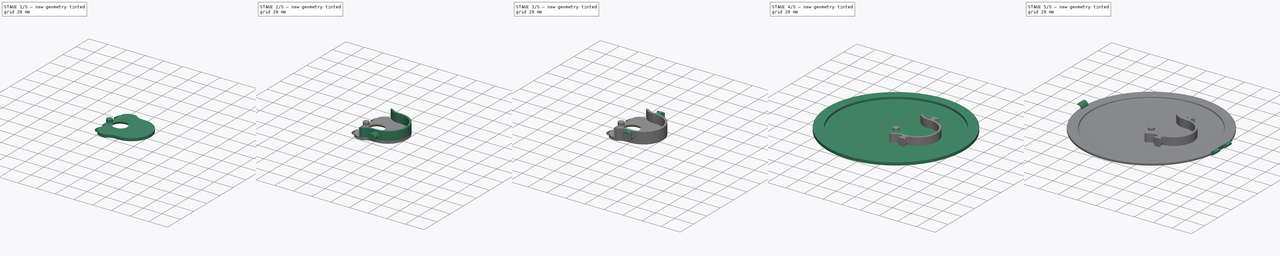
[diagram: build sequence overview — one tinted view per stage of 5, left to right]
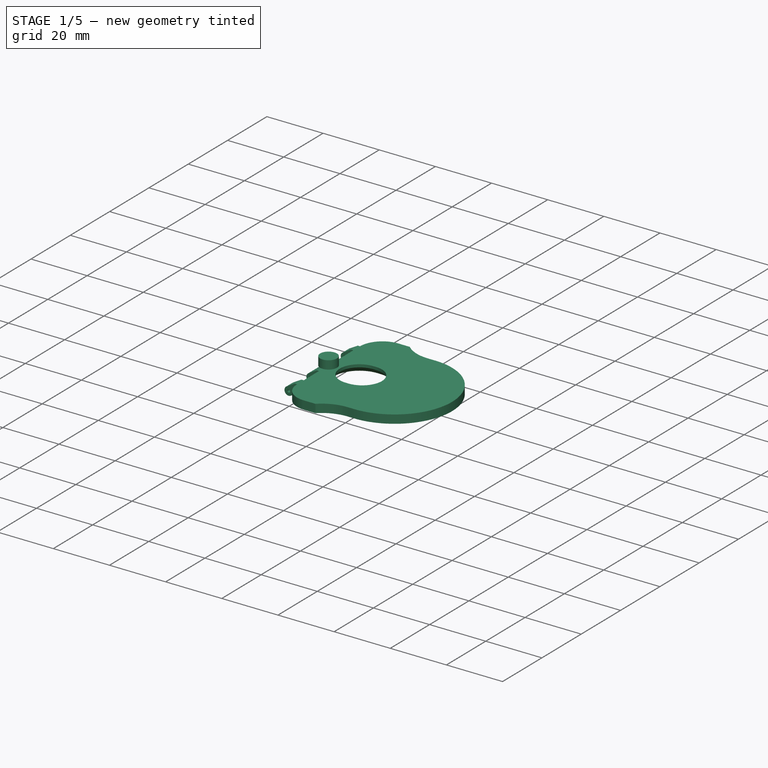
[diagram: stage 1 of 5 — iso view after this stage's code; geometry added in this stage tinted green]
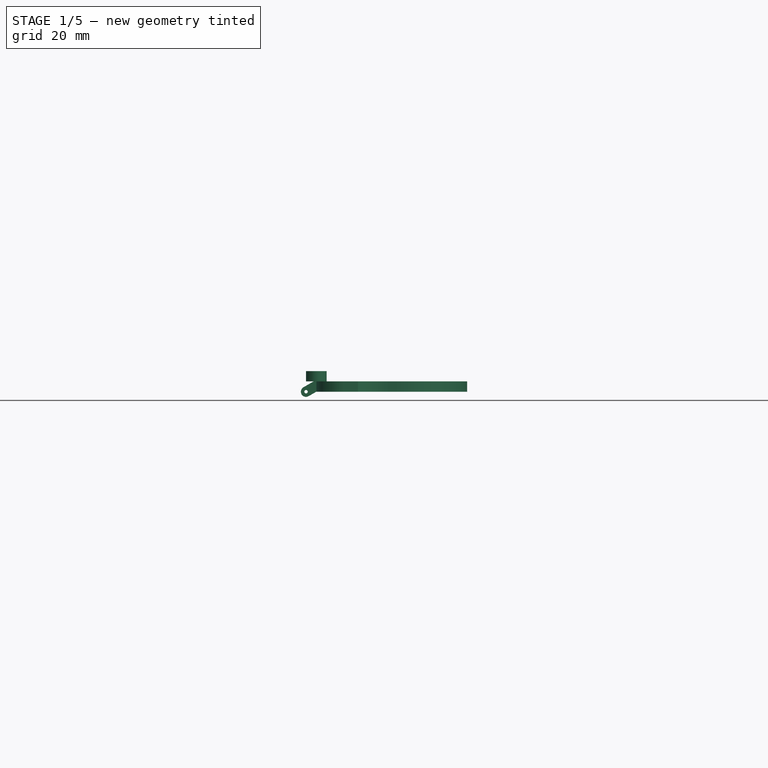
[diagram: stage 1 of 5 — front view after this stage's code; geometry added in this stage tinted green]
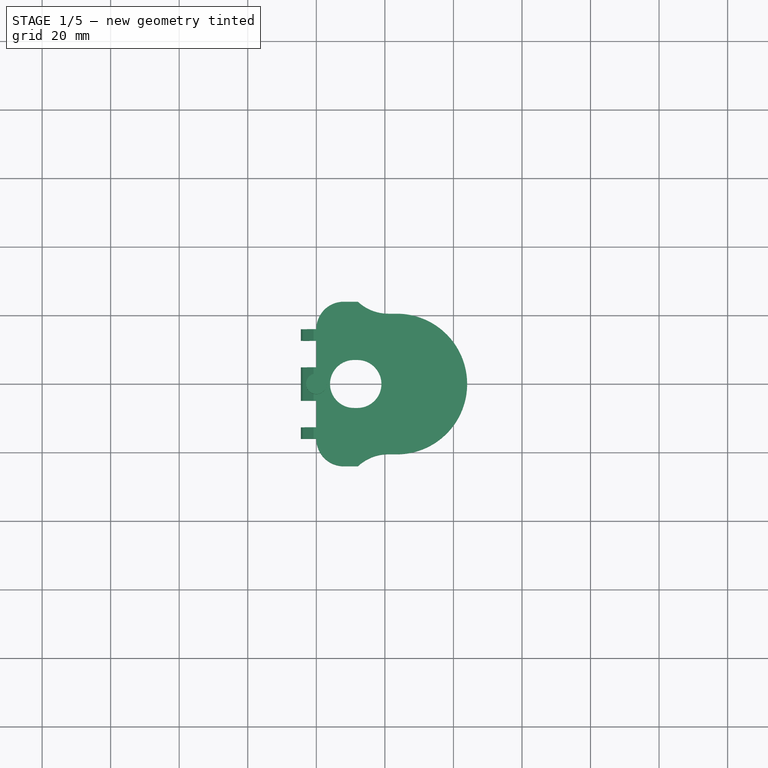
[diagram: stage 1 of 5 — top view after this stage's code; geometry added in this stage tinted green]
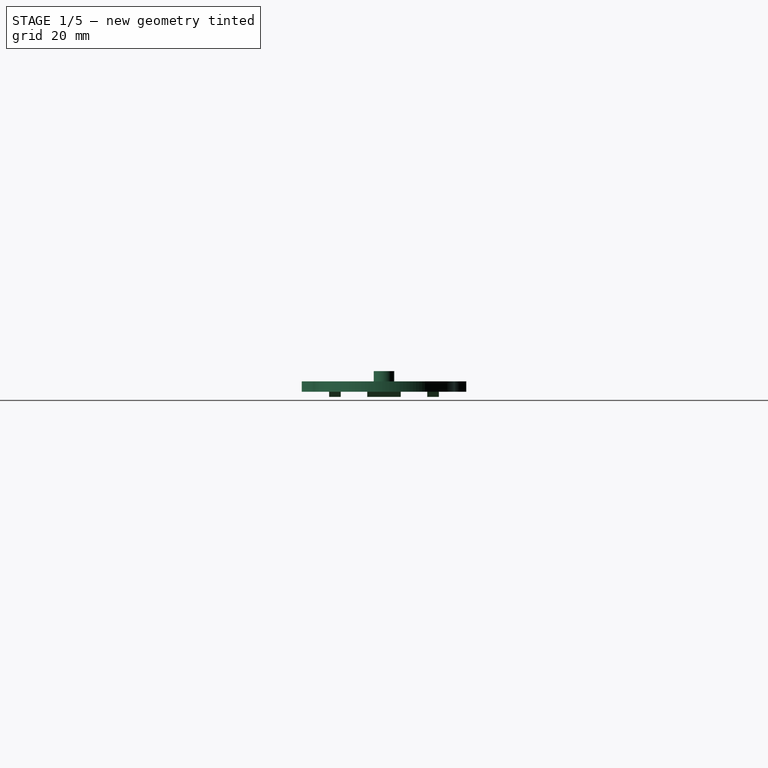
[diagram: stage 1 of 5 — right view after this stage's code; geometry added in this stage tinted green]
FCSTD DOCUMENT  (FreeCAD 0.20R27319 (Git))
Label: LightCover
License: All rights reserved
LicenseURL: http://en.wikipedia.org/wiki/All_rights_reserved
objects: Sketcher::SketchObject×12, PartDesign::Pad×9, PartDesign::Fillet×4, PartDesign::Plane×3, PartDesign::Pocket×3, PartDesign::Body×3, PartDesign::Mirrored×3, Part::FeaturePython×3, Spreadsheet::Sheet×1, PartDesign::Line×1, PartDesign::Chamfer×1, PartDesign::Revolution×1, PartDesign::MultiTransform×1, App::DocumentObjectGroup×1
note: 62 computed .brp shape members not serialized (recipe doc carries the construction recipe); baked Part::Feature solids carry a one-line shape summary decoded from their .brp

FEATURE [Spreadsheet::Sheet] Spreadsheet
  cells = A1=Width; B1(Width)=37; C1=WIdth of hinge mount near switch; A2=Length; B2(Length)=42; C2=Length from edge of hinge mount to edge of hinge; A3=Wall Thickness; B3(WallThickness)=2; C3=Thickness of shoulder on hinge mount; A4=Minor Length; B4(MinorLength)=19; A5=Shoulder Radius; B5(ShoulderRadius)=15; C5=Radius of curve that joins rim to switch area; A6=Plate Thickness; B6(PlateThickness)=3; C6=Thickness of hinge mounting and rim of cover; A7=Shoulder Width; B7(ShoulderWidth)=48; C7=Width of hing mounting at widest (over rim); A8=Hinge Width; B8(HingeWidth)=25; C8=Inner width of hinge - Outer width of two tabs; A9=Hinge Outer WIdth; B9(HingeOuterWIdth)=32; C9=Outer width of hinge - Width of entire hinge; A10=Cover Width; B10(CoverWidth)=146; C10=Width of main cover; A11=Shoulder Height; B11(ShoulderHeight)=9; C11=Height of shoulder rim on edge of hinge mounting; A12=Hinge Inner Width; B12(HingeInnerWidth)=10; C12=Hinge inner width - centre tab width; A13=Hinge Clearance; B13(HingeClearance)=0.25; C13=Gap between each hinge piece; A14=Boss Location; B14(BossLocation)=24; C14=Location of boss in X direction; A15=Cover Thickness; B15(CoverThickness)=0.8; C15=Thicknes of middle of cover; A16=Boss Z; B16(BossZ)=4; C16=Z Offset of boss; A17=Rim Width; B17(RimWidth)=10; C17=Width of rim on cover
FEATURE [Sketcher::SketchObject] Sketch002
  FullyConstrained = true
  MapMode = 5
  Placement = pos=(0,0,0) rot=(1,0,0;1.5708rad)
  Support = -> [XZ_Plane001]
  expr: Constraints[12] = Spreadsheet.PlateThickness
  expr: Constraints[5] = Spreadsheet.PlateThickness / 2
  expr: Constraints[6] = Spreadsheet.PlateThickness
  sketch-geometry (6):
    g0: LineSegment StartX=-0.803848 StartY=0 StartZ=0 EndX=-3.75 EndY=-1.70096 EndZ=0
    g1: ArcOfCircle CenterX=-3 CenterY=-3 CenterZ=0 NormalX=0 NormalY=0 NormalZ=1 AngleXU=0 Radius=1.5 StartAngle=2.0944 EndAngle=5.23599
    g2: LineSegment StartX=-2.25 StartY=-4.29904 StartZ=0 EndX=0 EndY=-3 EndZ=0
    g3: Circle CenterX=-3 CenterY=-3 CenterZ=0 NormalX=0 NormalY=0 NormalZ=1 AngleXU=0 Radius=0.5
    g4: LineSegment StartX=-0.803848 StartY=0 StartZ=0 EndX=0 EndY=0 EndZ=0
    g5: LineSegment StartX=0 StartY=0 StartZ=0 EndX=0 EndY=-3 EndZ=0
  constraints (15):
    c: Tangent(g0,g1) = -1.5708
    c: Coincident(g3,g1)
    c: Diameter(g3) = 1
    c: Tangent(g1,g2) = -1.5708
    c: Parallel(g0,g2)
    c: Radius(g1) = 1.5
    c: DistanceX(g1,g2) = 3
    c: Coincident(g4,g0)
    c: Horizontal(g4)
    c: Coincident(g5,g4)
    c: Vertical(g5)
    c: Coincident(g4,g-1)
    c: DistanceY(g5,g5) = 3
    c: Coincident(g2,g5)
    c: Horizontal(g1,g2)
FEATURE [Sketcher::SketchObject] Sketch006
  FullyConstrained = true
  MapMode = 5
  Support = -> [XY_Plane001]
  expr: Constraints[22] = Spreadsheet.Width
  expr: Constraints[23] = Spreadsheet.Width + 2 * Spreadsheet.WallThickness
  expr: Constraints[26] = Spreadsheet.Length
  expr: Constraints[27] = Spreadsheet.MinorLength + Spreadsheet.WallThickness
  expr: Constraints[28] = Spreadsheet.ShoulderRadius
  expr: Constraints[31] = Spreadsheet.ShoulderWidth
  sketch-geometry (13):
    g0: ArcOfCircle CenterX=23.5 CenterY=0 CenterZ=0 NormalX=0 NormalY=0 NormalZ=1 AngleXU=0 Radius=18.5 StartAngle=4.71239 EndAngle=7.85398
    g1: ArcOfCircle CenterX=21 CenterY=33.5 CenterZ=0 NormalX=0 NormalY=0 NormalZ=1 AngleXU=0 Radius=15 StartAngle=3.82745 EndAngle=4.71239
    g2: ArcOfCircle CenterX=21 CenterY=-33.5 CenterZ=0 NormalX=0 NormalY=0 NormalZ=1 AngleXU=0 Radius=15 StartAngle=1.5708 EndAngle=2.45574
    g3: ArcOfCircle CenterX=21 CenterY=33.5 CenterZ=0 NormalX=0 NormalY=0 NormalZ=1 AngleXU=0 Radius=13 StartAngle=3.96104 EndAngle=4.71239
    g4: ArcOfCircle CenterX=21 CenterY=-33.5 CenterZ=0 NormalX=0 NormalY=0 NormalZ=1 AngleXU=0 Radius=13 StartAngle=1.5708 EndAngle=2.32214
    g5: ArcOfCircle CenterX=23.5 CenterY=0 CenterZ=0 NormalX=0 NormalY=0 NormalZ=1 AngleXU=0 Radius=20.5 StartAngle=4.71239 EndAngle=7.85398
    g6: LineSegment StartX=21 StartY=18.5 StartZ=0 EndX=23.5 EndY=18.5 EndZ=0
    g7: LineSegment StartX=21 StartY=-18.5 StartZ=0 EndX=23.5 EndY=-18.5 EndZ=0
    g8: LineSegment StartX=9.39181 StartY=24 StartZ=0 EndX=12.1259 EndY=24 EndZ=0
    g9: LineSegment StartX=9.39181 StartY=-24 StartZ=0 EndX=12.1259 EndY=-24 EndZ=0
    g10: LineSegment StartX=21 StartY=-20.5 StartZ=0 EndX=23.5 EndY=-20.5 EndZ=0
    g11: LineSegment StartX=21 StartY=20.5 StartZ=0 EndX=23.5 EndY=20.5 EndZ=0
    g12: GeomPoint X=42 Y=0 Z=0
  constraints (32):
    c: Coincident(g3,g1)
    c: Coincident(g4,g2)
    c: Coincident(g5,g0)
    c: Horizontal(g6)
    c: Horizontal(g7)
    c: Coincident(g8,g1)
    c: Coincident(g8,g3)
    c: Coincident(g9,g2)
    c: Coincident(g9,g4)
    c: Horizontal(g9)
    c: Horizontal(g10)
    c: Horizontal(g11)
    c: Tangent(g11,g5) = 1.5708
    c: Tangent(g10,g5) = -1.5708
    c: Tangent(g7,g0) = -1.5708
    c: Tangent(g6,g0) = 1.5708
    c: Tangent(g10,g4) = 1.5708
    c: Tangent(g11,g3) = -1.5708
    c: Tangent(g6,g1) = -1.5708
    c: Tangent(g7,g2) = 1.5708
    c: PointOnObject(g0,g-1)
    c: Symmetric(g3,g4,g-1)
    c: DistanceY(g0,g0) = 37
    c: DistanceY(g5,g5) = 41
    c: PointOnObject(g12,g0)
    c: PointOnObject(g12,g-1)
    c: DistanceX(g-1,g12) = 42
    c: DistanceX(g-1,g2) = 21
    c: Radius(g1) = 15
    c: Vertical(g4,g3)
    c: Horizontal(g8)
    c: DistanceY(g2,g1) = 48
FEATURE [Sketcher::SketchObject] Sketch007
  FullyConstrained = true
  MapMode = 5
  Support = -> [XY_Plane001]
  expr: Constraints[22] = Spreadsheet.WallThickness + Spreadsheet.Length
  expr: Constraints[28] = Spreadsheet.ShoulderRadius - Spreadsheet.WallThickness
  expr: Constraints[29] = Spreadsheet.MinorLength + Spreadsheet.WallThickness
  expr: Constraints[38] = Spreadsheet.ShoulderWidth
  expr: Constraints[9] = Spreadsheet.Width + 2 * Spreadsheet.WallThickness
  sketch-geometry (17):
    g0: LineSegment StartX=0 StartY=-16 StartZ=0 EndX=0 EndY=16 EndZ=0
    g1: LineSegment StartX=8 StartY=24 StartZ=0 EndX=12.1259 EndY=24 EndZ=0
    g2: LineSegment StartX=21 StartY=20.5 StartZ=0 EndX=23.5 EndY=20.5 EndZ=0
    g3: LineSegment StartX=23.5 StartY=-20.5 StartZ=0 EndX=21 EndY=-20.5 EndZ=0
    g4: LineSegment StartX=12.1259 StartY=-24 StartZ=0 EndX=8 EndY=-24 EndZ=0
    g5: ArcOfCircle CenterX=23.5 CenterY=-1e-15 CenterZ=0 NormalX=0 NormalY=0 NormalZ=1 AngleXU=0 Radius=20.5 StartAngle=4.71239 EndAngle=7.85398
    g6: GeomPoint X=11.5 Y=0 Z=0
    g7: ArcOfCircle CenterX=11 CenterY=0 CenterZ=0 NormalX=0 NormalY=0 NormalZ=1 AngleXU=0 Radius=7 StartAngle=1.5708 EndAngle=4.71239
    g8: ArcOfCircle CenterX=12 CenterY=0 CenterZ=0 NormalX=0 NormalY=0 NormalZ=1 AngleXU=0 Radius=7 StartAngle=4.71239 EndAngle=7.85398
    g9: LineSegment StartX=11 StartY=7 StartZ=0 EndX=12 EndY=7 EndZ=0
    g10: LineSegment StartX=11 StartY=-7 StartZ=0 EndX=12 EndY=-7 EndZ=0
    g11: GeomPoint X=44 Y=0 Z=0
    g12: ArcOfCircle CenterX=21 CenterY=33.5 CenterZ=0 NormalX=0 NormalY=0 NormalZ=1 AngleXU=0 Radius=13 StartAngle=3.96104 EndAngle=4.71239
    g13: ArcOfCircle CenterX=21 CenterY=-33.5 CenterZ=0 NormalX=0 NormalY=0 NormalZ=1 AngleXU=0 Radius=13 StartAngle=1.5708 EndAngle=2.32214
    g14: ArcOfCircle CenterX=8 CenterY=16 CenterZ=0 NormalX=0 NormalY=0 NormalZ=1 AngleXU=0 Radius=8 StartAngle=1.5708 EndAngle=3.14159
    g15: ArcOfCircle CenterX=8 CenterY=-16 CenterZ=0 NormalX=0 NormalY=0 NormalZ=1 AngleXU=0 Radius=8 StartAngle=3.14159 EndAngle=4.71239
    g16: GeomPoint X=4 Y=0 Z=0
  constraints (43):
    c: Horizontal(g1)
    c: Horizontal(g2)
    c: Horizontal(g3)
    c: Vertical(g3,g2)
    c: Horizontal(g4)
    c: Symmetric(g1,g4,g-1)
    c: Coincident(g5,g3)
    c: Symmetric(g2,g3,g-1)
    c: Tangent(g5,g2) = 1.5708
    c: DistanceY(g3,g2) = 41
    c: PointOnObject(g6,g-1)
    c: PointOnObject(g7,g-1)
    c: Horizontal(g9)
    c: Tangent(g9,g8) = 1.5708
    c: Tangent(g10,g8) = -1.5708
    c: Tangent(g9,g7) = 1.5708
    c: Tangent(g10,g7) = -1.5708
    c: Symmetric(g7,g8,g6)
    c: DistanceX(g9,g9) = 1
    c: Radius(g8) = 7
    c: PointOnObject(g11,g-1)
    c: PointOnObject(g11,g5)
    c: DistanceX(g-1,g11) = 44
    c: Coincident(g12,g1)
    c: Coincident(g13,g3)
    c: Coincident(g13,g4)
    c: Equal(g12,g13)
    c: Tangent(g12,g2) = -1.5708
    c: Radius(g12) = 13
    c: DistanceX(g-1,g13) = 21
    c: Tangent(g0,g14) = 1.5708
    c: Tangent(g1,g14) = 1.5708
    c: Tangent(g0,g15) = 1.5708
    c: Tangent(g4,g15) = 1.5708
    c: Equal(g14,g15)
    c: Radius(g14) = 8
    c: Vertical(g0)
    c: PointOnObject(g-1,g0)
    c: DistanceY(g4,g1) = 48
    c: DistanceX(g6,g11) = 32.5
    c: PointOnObject(g16,g7)
    c: PointOnObject(g16,g-1)
    c: DistanceX(g-1,g16) = 4
FEATURE [PartDesign::Pad] Pad004  label="Mounting"
  Direction = (0,0,1)
  Length = 3
  Length2 = 10
  Profile = -> Sketch007
  ReferenceAxis = -> Sketch007 [N_Axis]
  Reversed = true
  Type = 0
  expr: Length = Spreadsheet.PlateThickness
FEATURE [Sketcher::SketchObject] Sketch010
  FullyConstrained = false
  MapMode = 5
  Support = -> [XY_Plane001]
  expr: Constraints[17] = Spreadsheet.HingeInnerWidth - Spreadsheet.HingeClearance
  expr: Constraints[19] = Spreadsheet.HingeWidth + Spreadsheet.HingeClearance
  sketch-geometry (8):
    g0: LineSegment StartX=-13.702 StartY=12.625 StartZ=0 EndX=0 EndY=12.625 EndZ=0
    g1: LineSegment StartX=0 StartY=12.625 StartZ=0 EndX=0 EndY=4.875 EndZ=0
    g2: LineSegment StartX=0 StartY=4.875 StartZ=0 EndX=-4.94797 EndY=4.875 EndZ=0
    g3: LineSegment StartX=-4.94797 StartY=4.875 StartZ=0 EndX=-4.94797 EndY=-4.875 EndZ=0
    g4: LineSegment StartX=-4.94797 StartY=-4.875 StartZ=0 EndX=0 EndY=-4.875 EndZ=0
    g5: LineSegment StartX=0 StartY=-4.875 StartZ=0 EndX=0 EndY=-12.625 EndZ=0
    g6: LineSegment StartX=0 StartY=-12.625 StartZ=0 EndX=-13.702 EndY=-12.625 EndZ=0
    g7: LineSegment StartX=-13.702 StartY=-12.625 StartZ=0 EndX=-13.702 EndY=12.625 EndZ=0
  constraints (20):
    c: Coincident(g0,g1)
    c: Vertical(g1)
    c: Coincident(g1,g2)
    c: Horizontal(g2)
    c: Coincident(g2,g3)
    c: Vertical(g3)
    c: Coincident(g3,g4)
    c: Coincident(g4,g5)
    c: Coincident(g5,g6)
    c: Coincident(g6,g7)
    c: Coincident(g0,g7)
    c: Horizontal(g0)
    c: Horizontal(g6)
    c: Symmetric(g0,g6,g-1)
    c: Symmetric(g1,g4,g-1)
    c: Vertical(g5)
    c: Horizontal(g4)
    c: DistanceY(g3,g3) = 9.75
    c: PointOnObject(g0,g-2)
    c: DistanceY(g7,g7) = 25.25
FEATURE [PartDesign::Plane] DatumPlane  label="DatumPlane - Boss"
  Length = 60
  MapMode = 2
  Placement = pos=(0,0,4) rot=(0,0,1;0rad)
  ResizeMode = 0
  Width = 60
  expr: .Placement.Base.z = Spreadsheet.BossZ
FEATURE [Sketcher::SketchObject] Sketch011
  FullyConstrained = false
  MapMode = 5
  Placement = pos=(0,0,4) rot=(0,0,1;0rad)
  Support = -> [DatumPlane]
  expr: Constraints[4] = Spreadsheet.BossLocation
  sketch-geometry (6):
    g0: LineSegment StartX=24 StartY=-19 StartZ=0 EndX=28 EndY=-19 EndZ=0
    g1: ArcOfCircle CenterX=27.636 CenterY=-22.6876 CenterZ=0 NormalX=0 NormalY=0 NormalZ=1 AngleXU=0 Radius=1.75 StartAngle=2.10052 EndAngle=4.54056
    g2: LineSegment StartX=27.2 StartY=-26 StartZ=0 EndX=24 EndY=-26 EndZ=0
    g3: ArcOfCircle CenterX=25.4768 CenterY=-19 CenterZ=0 NormalX=0 NormalY=0 NormalZ=1 AngleXU=0 Radius=2.5232 StartAngle=5.24211 EndAngle=6.28319
    g4: ArcOfCircle CenterX=27.2 CenterY=-25.2 CenterZ=0 NormalX=0 NormalY=0 NormalZ=1 AngleXU=0 Radius=0.8 StartAngle=4.71239 EndAngle=7.68215
    g5: LineSegment StartX=24 StartY=-19 StartZ=0 EndX=24 EndY=-26 EndZ=0
  constraints (17):
    c: Horizontal(g0)
    c: Horizontal(g2)
    c: DistanceX(g0,g0) = 4
    c: DistanceY(g2,g0) = 7
    c: DistanceX(g-1,g0) = 24
    c: DistanceY(g0,g-1) = 19
    c: Coincident(g3,g0)
    c: Tangent(g3,g1) = 1.5708
    c: Perpendicular(g3,g0)
    c: Tangent(g2,g4) = 1.5708
    c: Tangent(g4,g1) = 1.5708
    c: Radius(g1) = 1.75
    c: Coincident(g5,g0)
    c: Coincident(g5,g2)
    c: Vertical(g5)
    c: Radius(g4) = 0.8
    c: DistanceX(g2,g2) = 3.2
FEATURE [PartDesign::Line] DatumLine  label="DatumLine - Boss"
  AttacherType = Attacher::AttachEngineLine
  Length = 20
  MapMode = 17
  Placement = pos=(24,0,4) rot=(1,0,0;1.5708rad)
  ResizeMode = 0
  expr: .Placement.Base.x = Spreadsheet.BossLocation
  expr: .Placement.Base.z = Spreadsheet.BossZ
FEATURE [PartDesign::Chamfer] Chamfer
  Angle = 45
  Base = -> Pad004 [Edge40]
  BaseFeature = -> Pad004
  ChamferType = 0
  FlipDirection = false
  Size = 2
  Size2 = 1
  SupportTransform = false
FEATURE [PartDesign::Pad] Pad006  label="Hinge002"
  BaseFeature = -> Chamfer
  Direction = (0,-1,-2e-16)
  Length = 32
  Length2 = 10
  Midplane = true
  Profile = -> Sketch002
  ReferenceAxis = -> Sketch002 [N_Axis]
  Type = 0
  expr: Length = Spreadsheet.HingeOuterWIdth
FEATURE [PartDesign::Pocket] Pocket002  label="Hinge Cutout"
  BaseFeature = -> Pad006
  Direction = (0,0,-1)
  Length = 5
  Length2 = 5
  Midplane = true
  Profile = -> Sketch010
  ReferenceAxis = -> Sketch010 [N_Axis]
  Type = 1
FEATURE [App::DocumentObjectGroup] GrExplode_Slice  label="Hinge Exploded"
  Group = -> [Slice_child0,Slice_child1]
FEATURE [Sketcher::SketchObject] Sketch018
  FullyConstrained = true
  MapMode = 5
  Support = -> [XY_Plane002]
  expr: Constraints[1] = Spreadsheet.RimWidth - 4
  sketch-geometry (1):
    g0: Circle CenterX=0 CenterY=0 CenterZ=0 NormalX=0 NormalY=0 NormalZ=1 AngleXU=0 Radius=3
  constraints (2):
    c: Coincident(g0,g-1)
    c: Diameter(g0) = 6
FEATURE [PartDesign::Pad] Pad010
  Direction = (0,0,1)
  Length = 3
  Length2 = 10
  Profile = -> Sketch018
  ReferenceAxis = -> Sketch018 [N_Axis]
  Type = 0
FEATURE [PartDesign::Body] Body002  label="Spacer"
  Group = -> [Sketch018,Pad010]
  Origin = -> Origin002
  Tip = -> Pad010
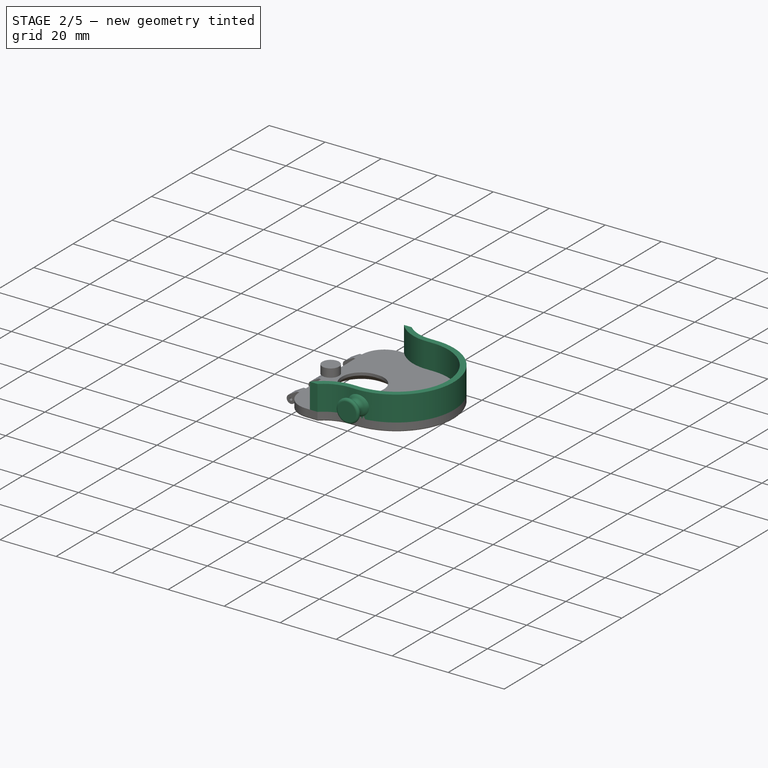
[diagram: stage 2 of 5 — iso view after this stage's code; geometry added in this stage tinted green]
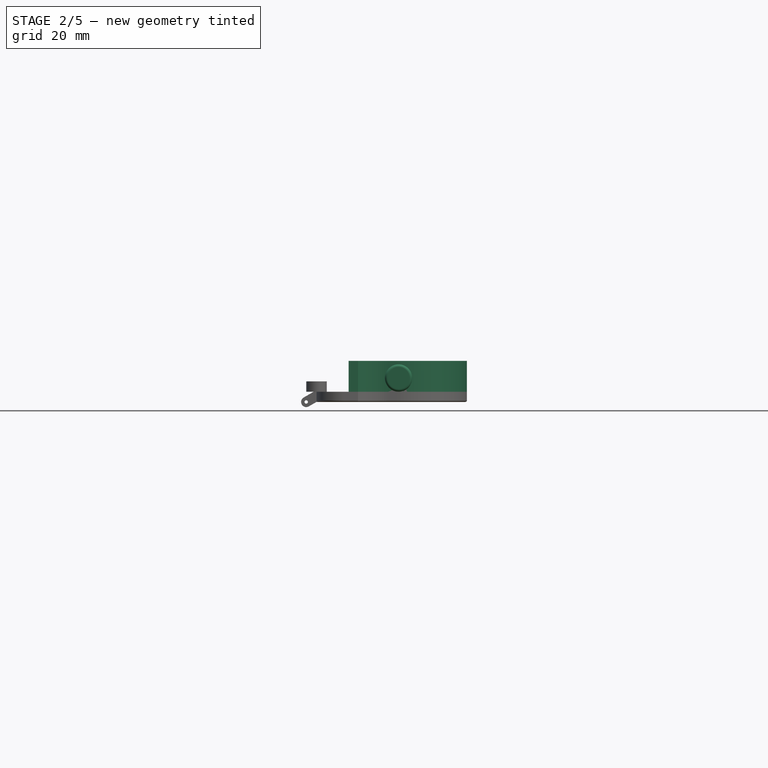
[diagram: stage 2 of 5 — front view after this stage's code; geometry added in this stage tinted green]
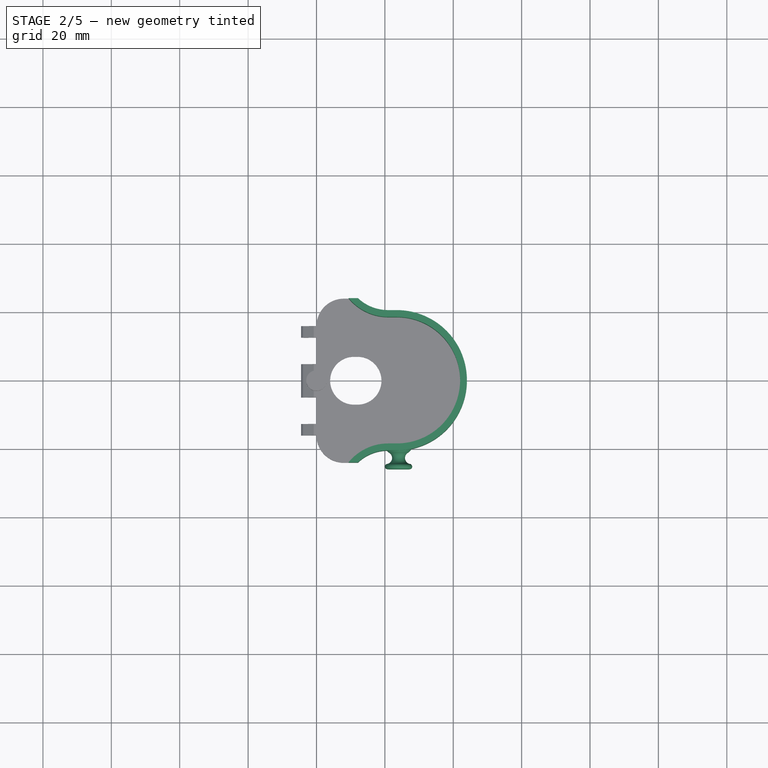
[diagram: stage 2 of 5 — top view after this stage's code; geometry added in this stage tinted green]
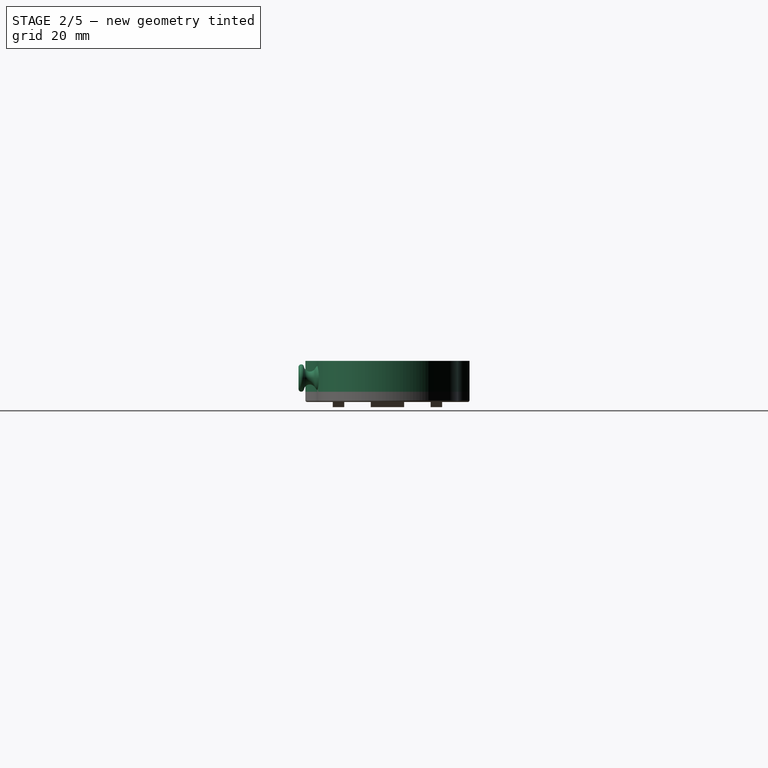
[diagram: stage 2 of 5 — right view after this stage's code; geometry added in this stage tinted green]
FEATURE [PartDesign::Fillet] Fillet003  label="Fillet-Main edges"
  Base = -> Pocket002 [Edge43,Edge46,Edge40,Edge35,Edge37]
  BaseFeature = -> Pocket002
  Radius = 0.5
  SupportTransform = false
FEATURE [PartDesign::Pad] Pad005  label="Wall"
  BaseFeature = -> Fillet003
  Direction = (0,0,1)
  Length = 9
  Length2 = 10
  Profile = -> Sketch006
  ReferenceAxis = -> Sketch006 [N_Axis]
  Type = 0
  expr: Length = Spreadsheet.ShoulderHeight
FEATURE [Sketcher::SketchObject] Sketch017
  FullyConstrained = true
  MapMode = 5
  Support = -> [XY_Plane001]
  expr: Constraints[2] = Spreadsheet.Length + Spreadsheet.WallThickness / 2
  expr: Constraints[6] = Spreadsheet.Width / 2 + Spreadsheet.WallThickness / 2
  expr: Constraints[7] = Spreadsheet.MinorLength
  sketch-geometry (3):
    g0: Circle CenterX=43 CenterY=0 CenterZ=0 NormalX=0 NormalY=0 NormalZ=1 AngleXU=0 Radius=0.5
    g1: Circle CenterX=24 CenterY=19.5 CenterZ=0 NormalX=0 NormalY=0 NormalZ=1 AngleXU=0 Radius=0.5
    g2: Circle CenterX=24 CenterY=-19.5 CenterZ=0 NormalX=0 NormalY=0 NormalZ=1 AngleXU=0 Radius=0.5
  constraints (8):
    c: Radius(g0) = 0.5
    c: PointOnObject(g0,g-1)
    c: DistanceX(g-1,g0) = 43
    c: Equal(g1,g2)
    c: Equal(g2,g0)
    c: Symmetric(g1,g2,g-1)
    c: DistanceY(g-1,g1) = 19.5
    c: DistanceX(g1,g0) = 19
FEATURE [PartDesign::Pocket] Pocket
  BaseFeature = -> Pad005
  Direction = (0,0,-1)
  Length = 1.5
  Length2 = 5
  Midplane = true
  Profile = -> Sketch017
  ReferenceAxis = -> Sketch017 [N_Axis]
  Type = 0
  expr: Length = Spreadsheet.PlateThickness / 2
FEATURE [PartDesign::Revolution] Revolution  label="Revolution - Boss"
  Angle = 360
  Axis = (0,-1,2e-16)
  Base = (24,0,4)
  BaseFeature = -> Pocket
  Profile = -> Sketch011
  ReferenceAxis = -> DatumLine
  Reversed = true
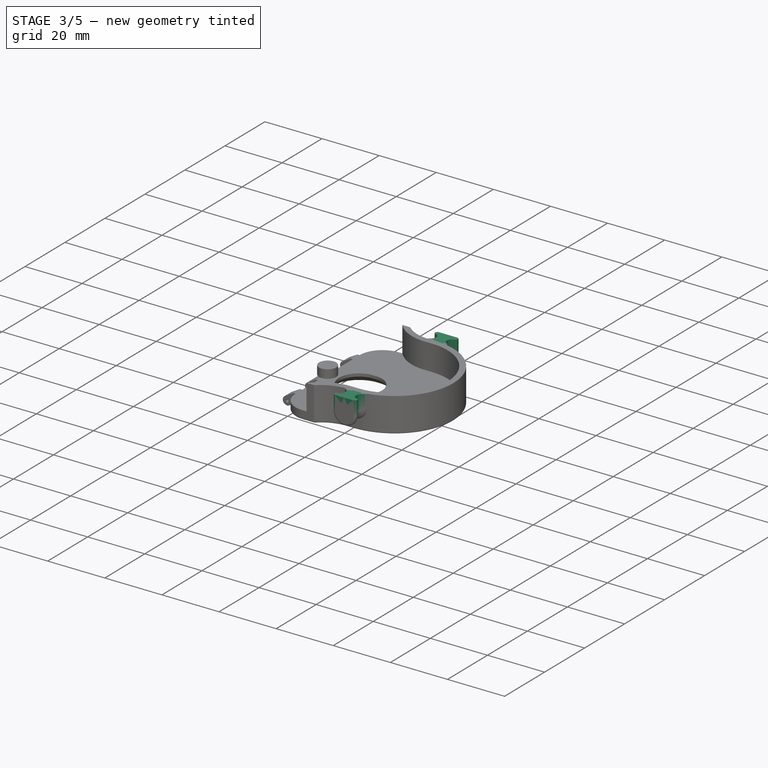
[diagram: stage 3 of 5 — iso view after this stage's code; geometry added in this stage tinted green]
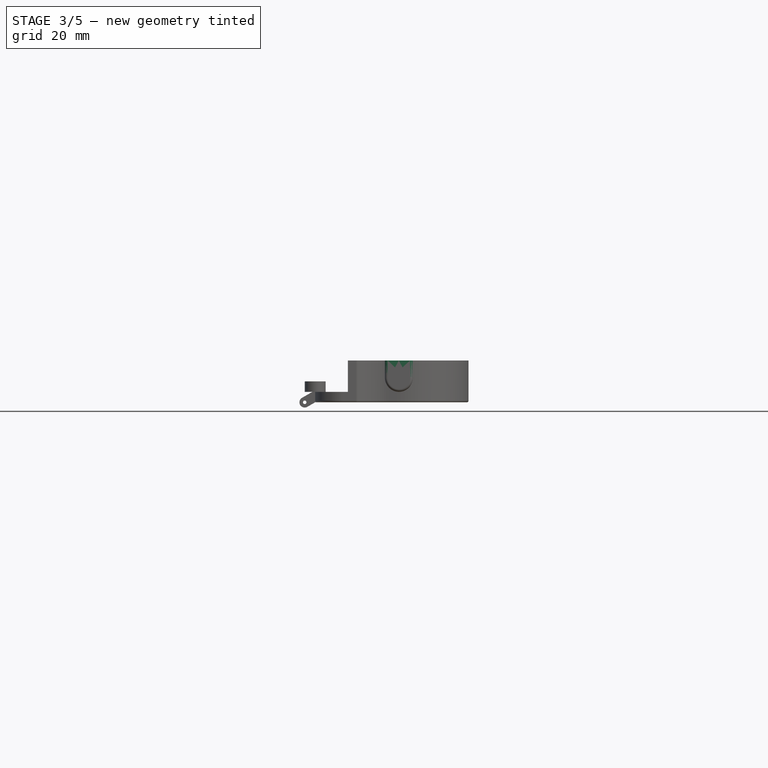
[diagram: stage 3 of 5 — front view after this stage's code; geometry added in this stage tinted green]
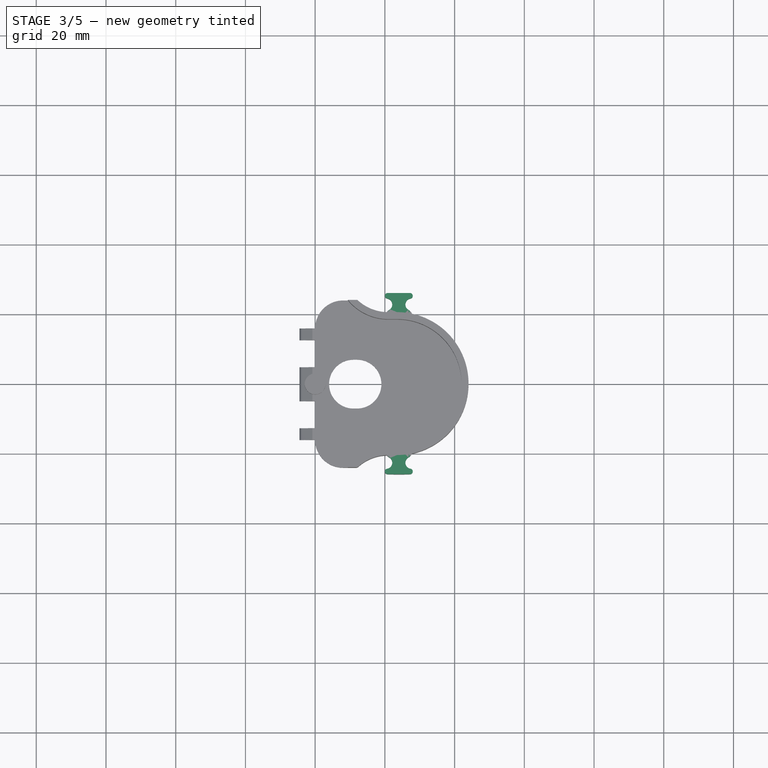
[diagram: stage 3 of 5 — top view after this stage's code; geometry added in this stage tinted green]
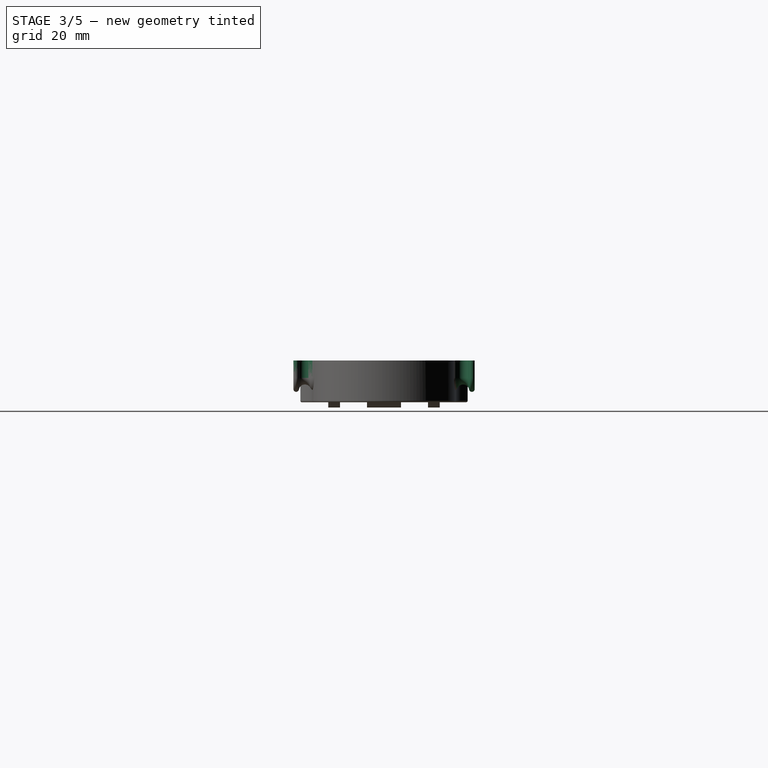
[diagram: stage 3 of 5 — right view after this stage's code; geometry added in this stage tinted green]
FEATURE [PartDesign::Pad] Pad009  label="Pad - Boss half support"
  BaseFeature = -> Revolution
  Direction = (0,0,1)
  Length = 5
  Length2 = 0
  Profile = -> Sketch011
  ReferenceAxis = -> Sketch011 [N_Axis]
  Type = 0
  expr: Length = Spreadsheet.ShoulderHeight - Spreadsheet.BossZ
FEATURE [PartDesign::Body] Body  label="Cover"
  Group = -> [Sketch,Pad,Sketch001,Sketch004,Sketch005,Pad003,Fillet009,Pad001,Sketch003,Pocket001,Pad008,Fillet]
  Origin = -> Origin
  Tip = -> Fillet
FEATURE [PartDesign::Plane] DatumPlane004  label="DatumPlane - Boss2"
  Length = 60
  MapMode = 2
  Placement = pos=(24,0,0) rot=(0.57735,0.57735,0.57735;2.0944rad)
  ResizeMode = 0
  Width = 60
  expr: .Placement.Base.x = Spreadsheet.BossLocation
FEATURE [PartDesign::Mirrored] Mirrored
  MirrorPlane = -> DatumPlane004
  Overlap = 0
FEATURE [PartDesign::Mirrored] Mirrored001
  MirrorPlane = -> XZ_Plane001
  Overlap = 0
FEATURE [PartDesign::MultiTransform] MultiTransform
  BaseFeature = -> Pad009
  Originals = -> [Pad009]
  Overlap = 0
  Transformations = -> [Mirrored,Mirrored001]
FEATURE [PartDesign::Mirrored] Mirrored002
  BaseFeature = -> MultiTransform
  MirrorPlane = -> XZ_Plane001
  Originals = -> [Revolution]
  Overlap = 0
FEATURE [PartDesign::Fillet] Fillet010
  Base = -> Mirrored002 [Edge144]
  BaseFeature = -> Mirrored002
  Radius = 1
  SupportTransform = false
FEATURE [PartDesign::Body] Body001  label="Hinge"
  Group = -> [Sketch007,Pad004,Sketch017,Chamfer,Pad006,Pocket002,Fillet003,Sketch006,Pad005,Pocket,Sketch002,DatumLine,DatumPlane,DatumPlane004,Revolution,Pad009,Sketch011,Sketch010,DatumPlane003,MultiTransform,Mirrored,Mirrored001,Mirrored002,Fillet010]
  Origin = -> Origin001
  Tip = -> Fillet010
FEATURE [Part::FeaturePython] Slice  # WARN: FeaturePython — macro-defined, semantics opaque (R4)
  Base = -> Fillet010
  Mode = 1
  Tolerance = 0
  Tools = -> [DatumPlane003]
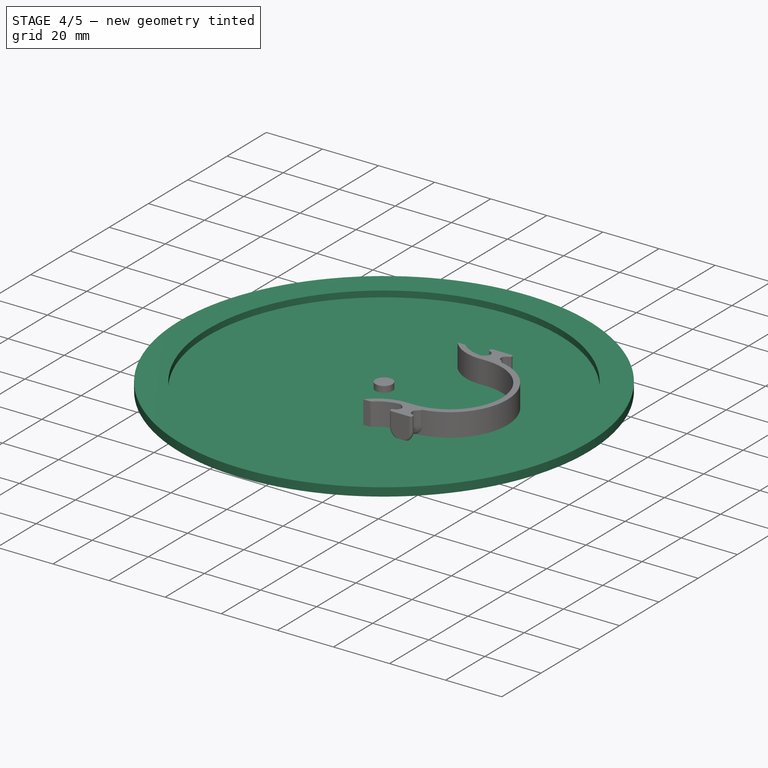
[diagram: stage 4 of 5 — iso view after this stage's code; geometry added in this stage tinted green]
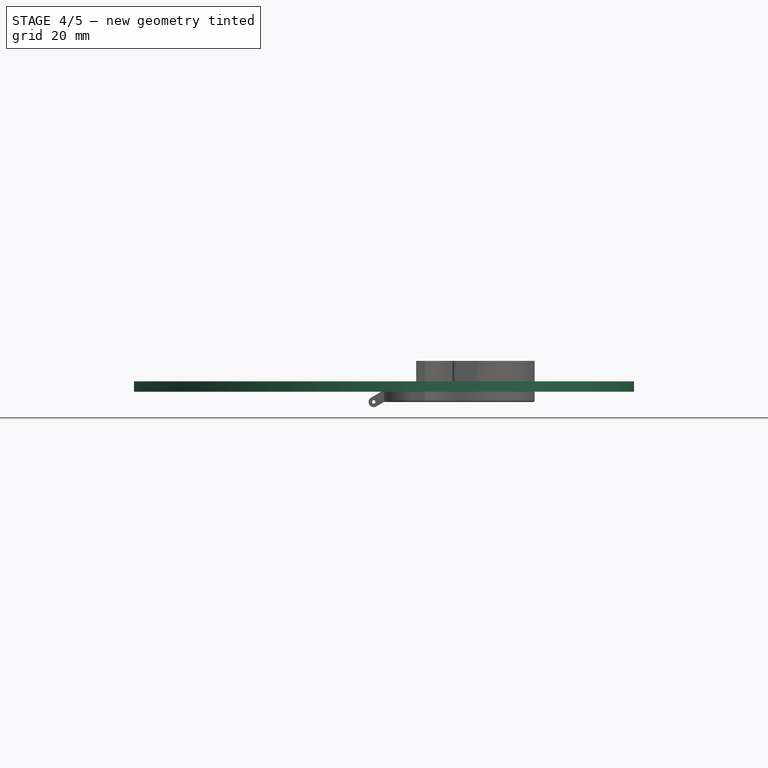
[diagram: stage 4 of 5 — front view after this stage's code; geometry added in this stage tinted green]
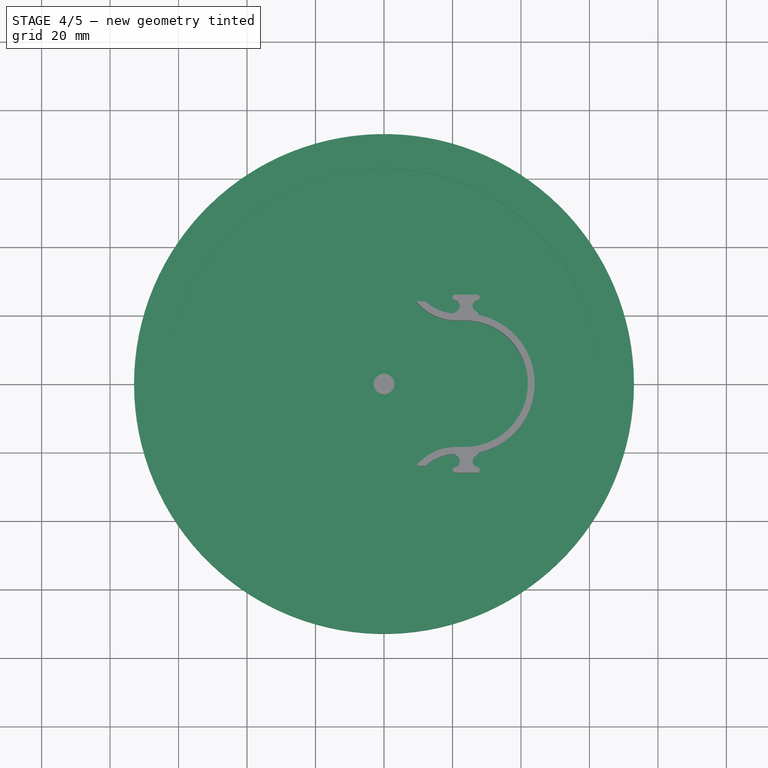
[diagram: stage 4 of 5 — top view after this stage's code; geometry added in this stage tinted green]
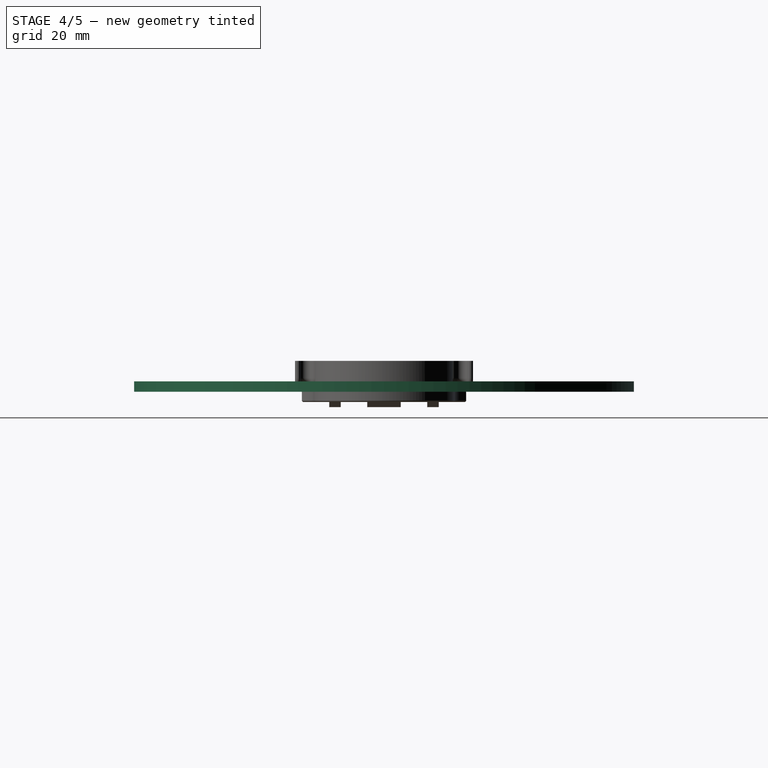
[diagram: stage 4 of 5 — right view after this stage's code; geometry added in this stage tinted green]
FEATURE [Sketcher::SketchObject] Sketch004
  FullyConstrained = true
  MapMode = 5
  Placement = pos=(0,0,0) rot=(1,0,0;1.5708rad)
  Support = -> [XZ_Plane]
  expr: Constraints[10] = Spreadsheet.PlateThickness
  expr: Constraints[7] = Spreadsheet.CoverWidth / 2 - 2
  sketch-geometry (4):
    g0: ArcOfCircle CenterX=-74 CenterY=3 CenterZ=0 NormalX=0 NormalY=0 NormalZ=1 AngleXU=0 Radius=4.5 StartAngle=3e-16 EndAngle=1.5708
    g1: ArcOfCircle CenterX=-74 CenterY=3 CenterZ=0 NormalX=0 NormalY=0 NormalZ=1 AngleXU=0 Radius=3 StartAngle=4e-16 EndAngle=1.5708
    g2: LineSegment StartX=-71 StartY=3 StartZ=0 EndX=-69.5 EndY=3 EndZ=0
    g3: ArcOfCircle CenterX=-74 CenterY=6.75 CenterZ=0 NormalX=0 NormalY=0 NormalZ=1 AngleXU=0 Radius=0.75 StartAngle=1.5708 EndAngle=4.71239
  constraints (12):
    c: Tangent(g0,g3) = -1.5708
    c: Tangent(g1,g3) = 1.5708
    c: Coincident(g0,g1)
    c: Coincident(g1,g2)
    c: Horizontal(g2,g0)
    c: Radius(g1) = 3
    c: Coincident(g0,g2)
    c: DistanceX(g1,g-1) = 71
    c: DistanceX(g2,g2) = 1.5
    c: Perpendicular(g1,g2)
    c: DistanceY(g-1,g1) = 3
    c: Vertical(g3,g0)
FEATURE [Sketcher::SketchObject] Sketch001
  FullyConstrained = true
  MapMode = 5
  Placement = pos=(0,0,0) rot=(1,0,0;1.5708rad)
  Support = -> [XZ_Plane]
  expr: Constraints[0] = Spreadsheet.PlateThickness / 2
  expr: Constraints[11] = Spreadsheet.PlateThickness - 0.5
  expr: Constraints[3] = Spreadsheet.CoverWidth / 2 + Spreadsheet.PlateThickness / 2
  expr: Constraints[5] = Spreadsheet.PlateThickness
  sketch-geometry (6):
    g0: ArcOfCircle CenterX=74.5 CenterY=3 CenterZ=0 NormalX=0 NormalY=0 NormalZ=1 AngleXU=0 Radius=1.5 StartAngle=5.32325 EndAngle=8.28578
    g1: LineSegment StartX=72.8307 StartY=0 StartZ=0 EndX=75.3604 EndY=1.77127 EndZ=0
    g2: Circle CenterX=74.5 CenterY=3 CenterZ=0 NormalX=0 NormalY=0 NormalZ=1 AngleXU=0 Radius=0.5
    g3: LineSegment StartX=69.8307 StartY=2.5 StartZ=0 EndX=73.8722 EndY=4.36232 EndZ=0
    g4: LineSegment StartX=72.8307 StartY=0 StartZ=0 EndX=69.8307 EndY=0 EndZ=0
    g5: LineSegment StartX=69.8307 StartY=0 StartZ=0 EndX=69.8307 EndY=2.5 EndZ=0
  constraints (16):
    c: Radius(g0) = 1.5
    c: Coincident(g2,g0)
    c: Diameter(g2) = 1
    c: DistanceX(g-1,g0) = 74.5
    c: Tangent(g0,g1) = -1.5708
    c: DistanceY(g-1,g0) = 3
    c: DistanceY(g-1,g1) = 0
    c: Coincident(g4,g5)
    c: Coincident(g5,g3)
    c: Horizontal(g4)
    c: Vertical(g5)
    c: DistanceY(g5,g5) = 2.5
    c: Coincident(g4,g1)
    c: Angle(g1,g-1) = 2.53073
    c: DistanceX(g4,g4) = 3
    c: Tangent(g3,g0) = 1.5708
FEATURE [Sketcher::SketchObject] Sketch
  FullyConstrained = true
  MapMode = 5
  Support = -> [XY_Plane]
  expr: Constraints[1] = Spreadsheet.CoverWidth - 4
  sketch-geometry (1):
    g0: Circle CenterX=0 CenterY=0 CenterZ=0 NormalX=0 NormalY=0 NormalZ=1 AngleXU=0 Radius=71
  constraints (2):
    c: Coincident(g0,g-1)
    c: Diameter(g0) = 142
FEATURE [PartDesign::Pad] Pad  label="ThinPlate"
  Direction = (0,0,1)
  Length = 0.8
  Length2 = 10
  Profile = -> Sketch
  ReferenceAxis = -> Sketch [N_Axis]
  Type = 0
  expr: Length = Spreadsheet.CoverThickness
FEATURE [Sketcher::SketchObject] Sketch003
  ExternalGeometry = -> [Pad]
  FullyConstrained = false
  MapMode = 5
  Support = -> [XY_Plane]
  expr: Constraints[10] = Spreadsheet.HingeInnerWidth + Spreadsheet.HingeClearance
  expr: Constraints[11] = Spreadsheet.CoverWidth / 2 - 1
  sketch-geometry (5):
    g0: LineSegment StartX=87.7007 StartY=-5.125 StartZ=0 EndX=87.7007 EndY=5.125 EndZ=0
    g1: LineSegment StartX=87.7007 StartY=5.125 StartZ=0 EndX=72 EndY=5.125 EndZ=0
    g2: LineSegment StartX=72 StartY=5.125 StartZ=0 EndX=72 EndY=-5.125 EndZ=0
    g3: LineSegment StartX=72 StartY=-5.125 StartZ=0 EndX=87.7007 EndY=-5.125 EndZ=0
    g4: GeomPoint X=79.8504 Y=0 Z=0
  constraints (12):
    c: Coincident(g0,g1)
    c: Coincident(g1,g2)
    c: Coincident(g2,g3)
    c: Coincident(g3,g0)
    c: Horizontal(g1)
    c: Horizontal(g3)
    c: Vertical(g0)
    c: Vertical(g2)
    c: Symmetric(g1,g0,g4)
    c: PointOnObject(g4,g-1)
    c: DistanceY(g0,g0) = 10.25
    c: DistanceX(g-1,g2) = 72
FEATURE [Sketcher::SketchObject] Sketch005
  FullyConstrained = true
  MapMode = 5
  Support = -> [XY_Plane]
  expr: Constraints[2] = Spreadsheet.CoverWidth
  expr: Constraints[3] = Spreadsheet.CoverWidth - 2 * Spreadsheet.RimWidth
  sketch-geometry (2):
    g0: Circle CenterX=0 CenterY=0 CenterZ=0 NormalX=0 NormalY=0 NormalZ=1 AngleXU=0 Radius=63
    g1: Circle CenterX=0 CenterY=0 CenterZ=0 NormalX=0 NormalY=0 NormalZ=1 AngleXU=0 Radius=73
  constraints (4):
    c: Coincident(g0,g-1)
    c: Coincident(g1,g0)
    c: Diameter(g1) = 146
    c: Diameter(g0) = 126
FEATURE [PartDesign::Pad] Pad003  label="EdgeRing"
  BaseFeature = -> Pad
  Direction = (0,0,1)
  Length = 3
  Length2 = 10
  Profile = -> Sketch005
  ReferenceAxis = -> Sketch005 [N_Axis]
  Type = 0
  expr: Length = Spreadsheet.PlateThickness
FEATURE [Part::FeaturePython] Slice_child0  label="Hinge-Plate"  # WARN: FeaturePython — macro-defined, semantics opaque (R4)
  Base = -> Slice
  FilterType = 1
  Invert = false
  OverrideMaxVal = 0
  WindowFrom = 80
  WindowTo = 100
  items = 0
FEATURE [Part::FeaturePython] Slice_child1  label="Hinge-Wall"  # WARN: FeaturePython — macro-defined, semantics opaque (R4)
  Base = -> Slice
  FilterType = 1
  Invert = false
  OverrideMaxVal = 0
  WindowFrom = 80
  WindowTo = 100
  items = 1
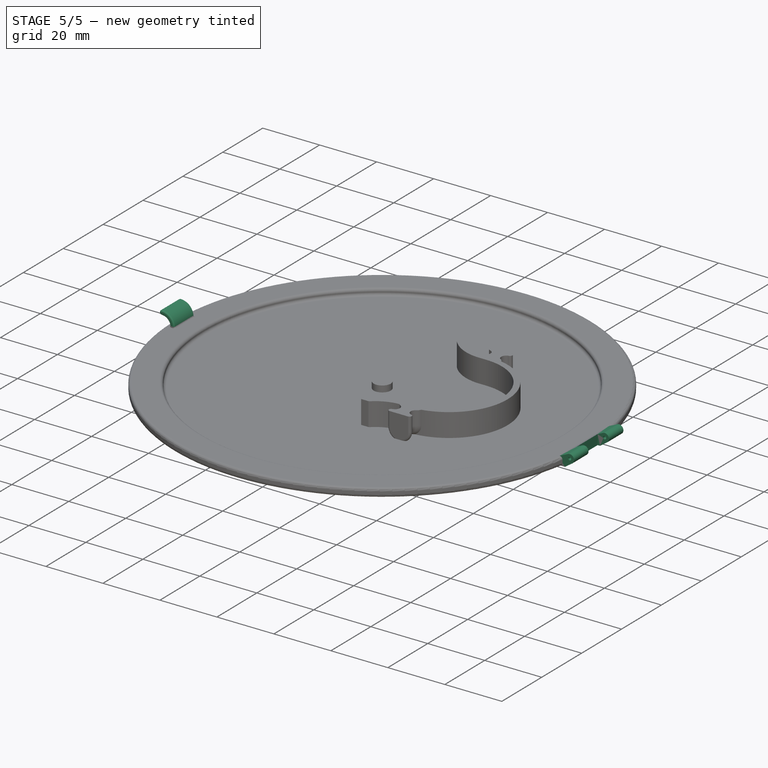
[diagram: stage 5 of 5 — iso view after this stage's code; geometry added in this stage tinted green]
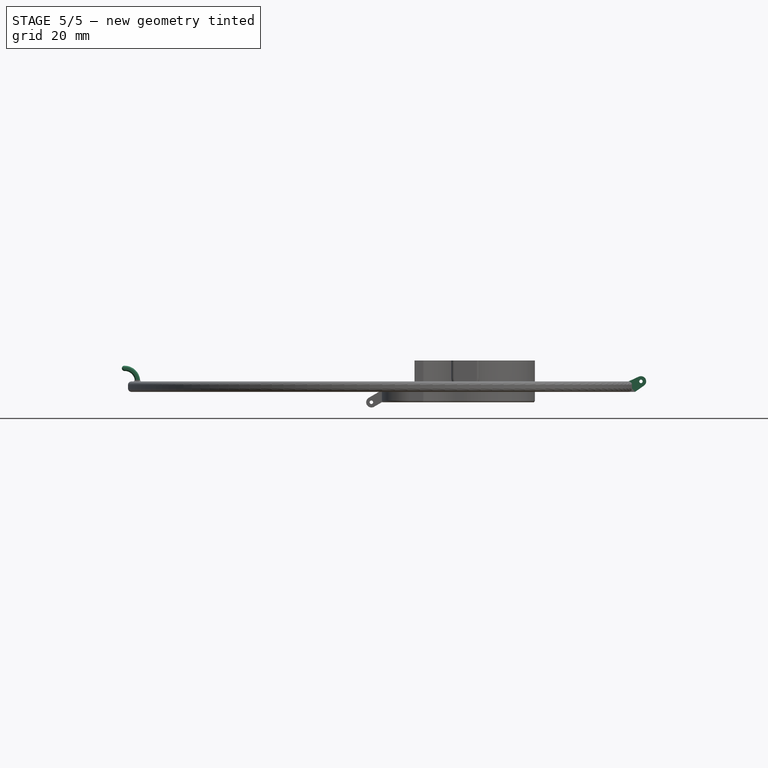
[diagram: stage 5 of 5 — front view after this stage's code; geometry added in this stage tinted green]
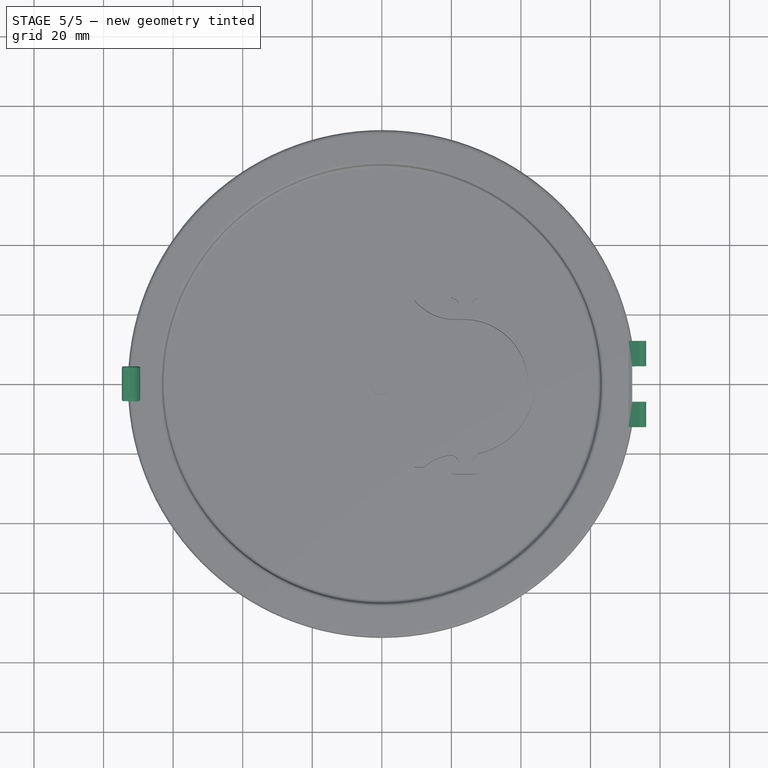
[diagram: stage 5 of 5 — top view after this stage's code; geometry added in this stage tinted green]
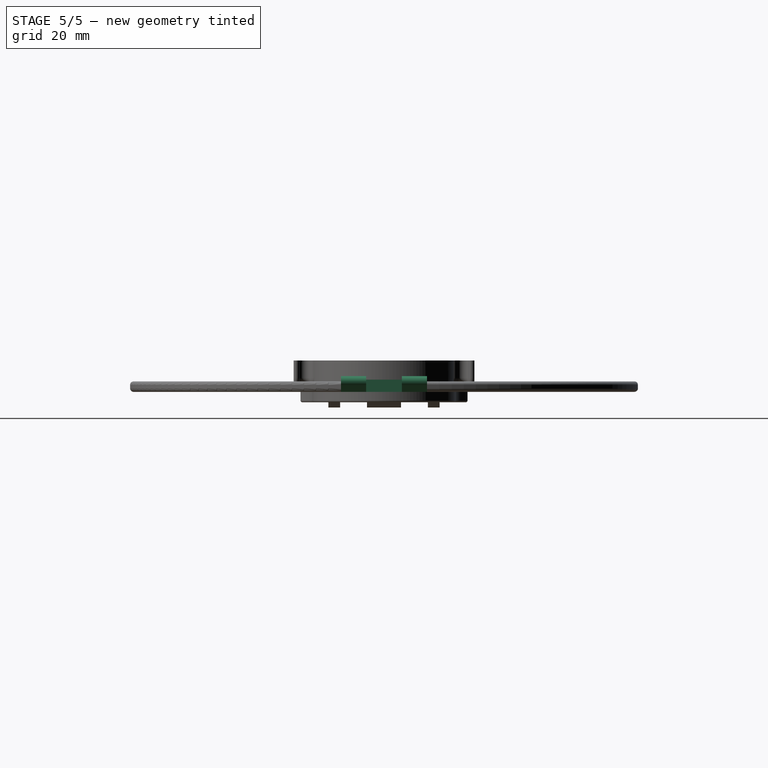
[diagram: stage 5 of 5 — right view after this stage's code; geometry added in this stage tinted green]
FEATURE [PartDesign::Plane] DatumPlane003
  Length = 60
  MapMode = 2
  ResizeMode = 0
  Support = -> [Revolution]
  Width = 60
FEATURE [PartDesign::Fillet] Fillet009
  Base = -> Pad003 [Face6,Face4]
  BaseFeature = -> Pad003
  Radius = 1
  SupportTransform = false
FEATURE [PartDesign::Pad] Pad001  label="Hinge001"
  BaseFeature = -> Fillet009
  Direction = (0,-1,-2e-16)
  Length = 24.75
  Length2 = 10
  Midplane = true
  Profile = -> Sketch001
  ReferenceAxis = -> Sketch001 [N_Axis]
  Type = 0
  expr: Length = Spreadsheet.HingeWidth - Spreadsheet.HingeClearance
FEATURE [PartDesign::Pocket] Pocket001  label="Hinge cut out"
  BaseFeature = -> Pad001
  Direction = (0,0,-1)
  Length = 5
  Length2 = 5
  Profile = -> Sketch003
  ReferenceAxis = -> Sketch003 [N_Axis]
  Reversed = true
  Type = 1
FEATURE [PartDesign::Pad] Pad008
  BaseFeature = -> Pocket001
  Direction = (0,-1,-2e-16)
  Length = 10
  Length2 = 10
  Midplane = true
  Profile = -> Sketch004
  ReferenceAxis = -> Sketch004 [N_Axis]
  Type = 0
FEATURE [PartDesign::Fillet] Fillet
  Base = -> Pad008 [Face26,Face24]
  BaseFeature = -> Pad008
  Radius = 0.5
  SupportTransform = false
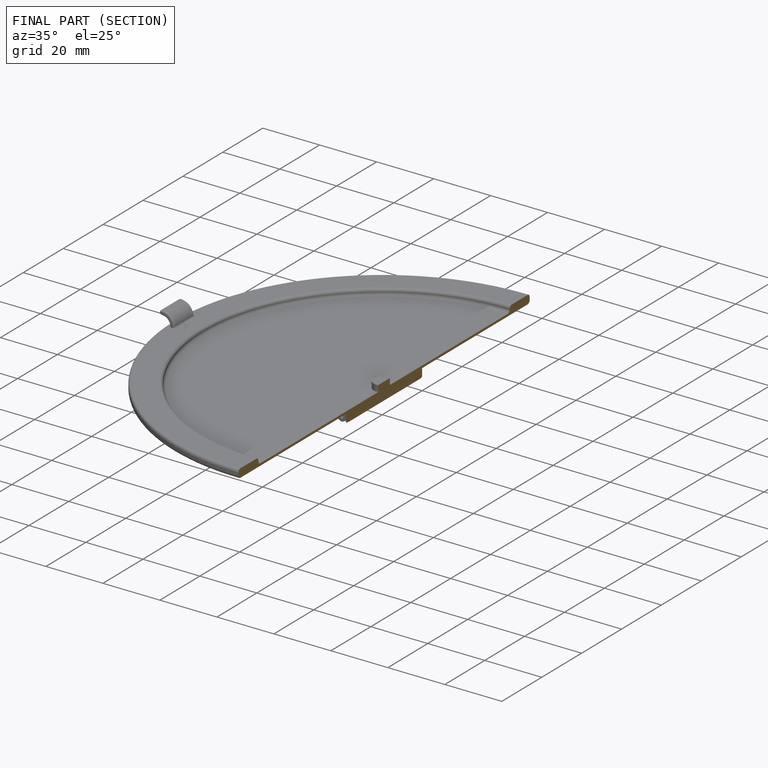
[diagram: finished part — half-section view (interior)]
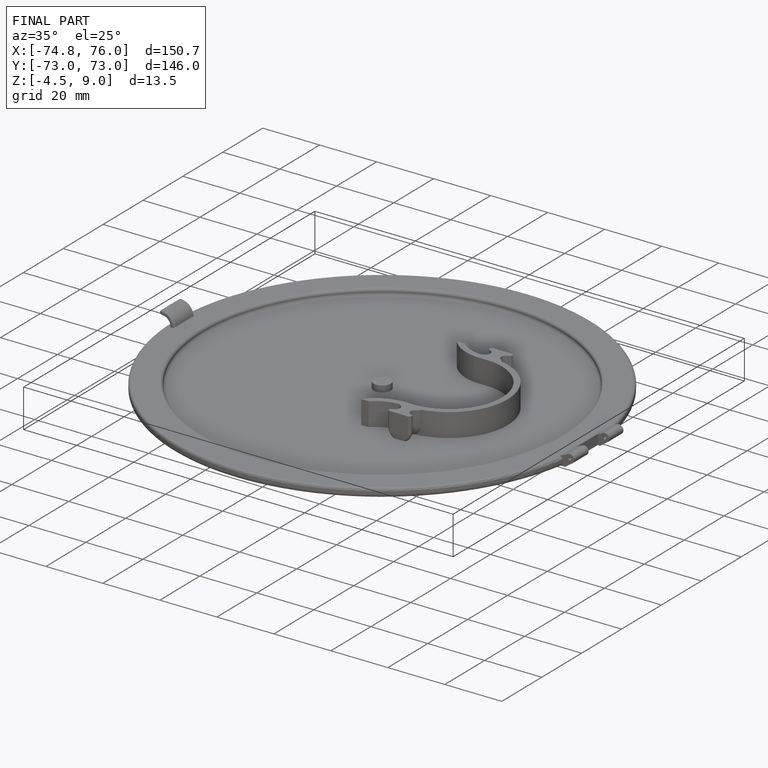
[diagram: finished part — iso view with bounding-box wireframe]
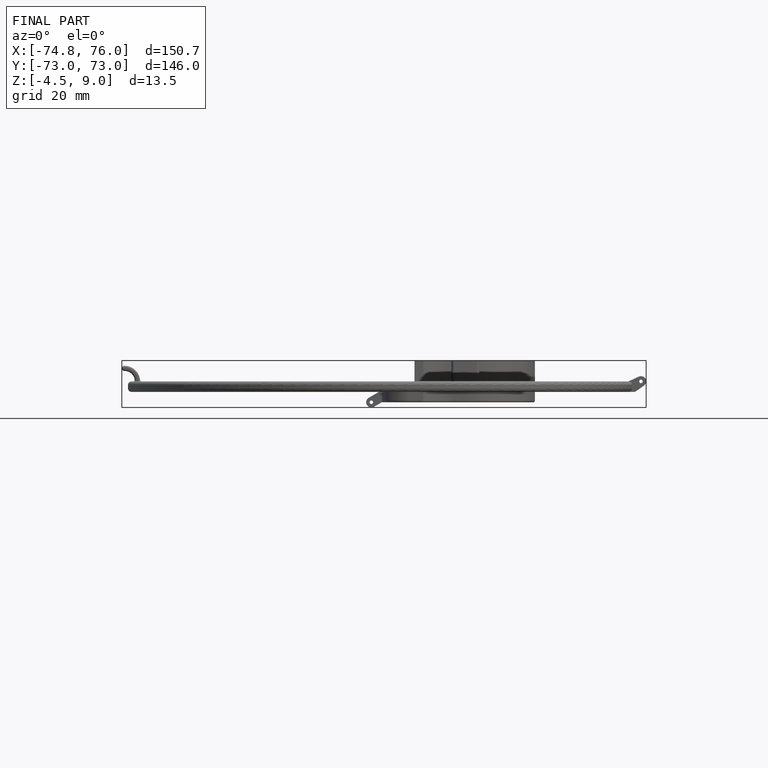
[diagram: finished part — front view with bounding-box wireframe]
